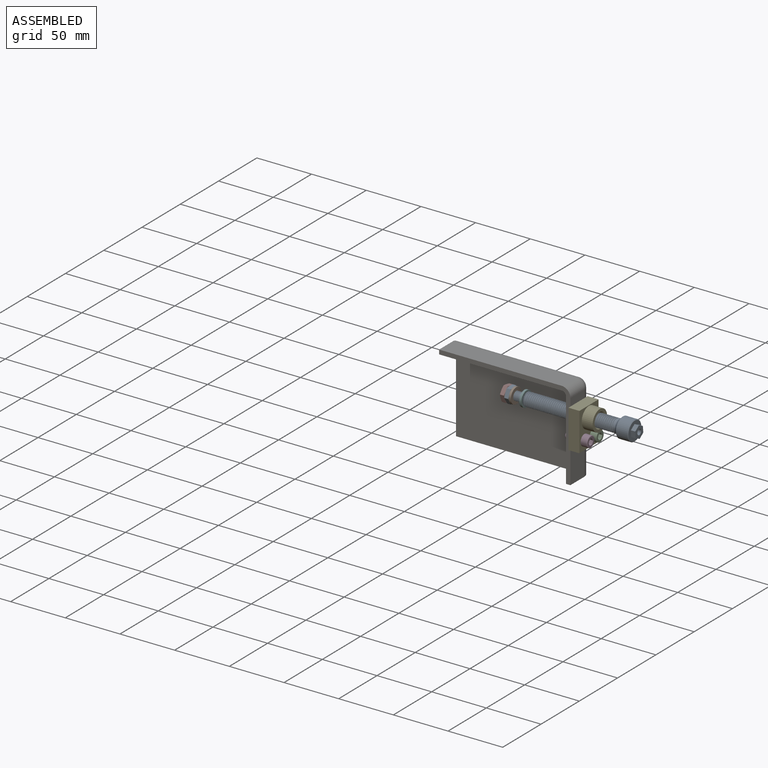
[diagram: assembled view]
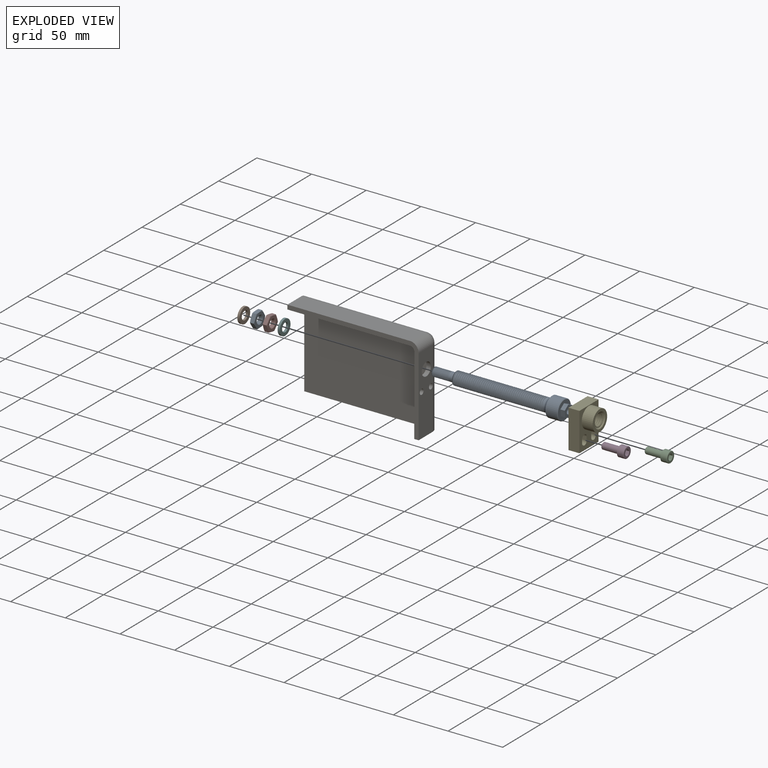
[diagram: exploded view]
GUIDED TOUR — MATED ASSEMBLY (Onshape document e716a5467d23825e18d68754, AutoMate assembly e716a5467d23825e18d68754_4b2d783e41e1b74c70136bd7_2899096c1321654fdca2aeec_default)

This assembly has 9 components, labeled P0..P8 below (a component is one placed occurrence of a part; the same part can appear more than once), held together by 10 mates. A mate is a constraint between two components; its type names the relative motion it leaves free:
  CYLINDRICAL — leaves both rotation about and translation along the listed axis free,
  PARALLEL — keeps the two listed directions parallel,
  PLANAR — leaves sliding in the plane through the listed point (normal = the listed direction) and rotation about that normal free,
  REVOLUTE — leaves rotation about the listed axis free (a hinge),
  SLIDER — leaves translation along the listed axis free.
Axis/direction vectors are unit vectors and 'through' points are millimeter coordinates, both in the assembly's world frame.

MATES
  1. SLIDER "Slider 2": P2 <-> P6, axis (-1.000, 0.000, 0.000) through (1.97, -10.00, -41.50) mm
  2. REVOLUTE "Revolute 3": P8 <-> P7, axis (-1.000, 0.000, 0.000) through (-62.51, -16.00, -25.00) mm
  3. REVOLUTE "Revolute 1": P5 <-> P0, axis (1.000, 0.000, 0.000) through (-47.01, -16.00, -25.00) mm
  4. REVOLUTE "Revolute 2": P7 <-> P0, axis (-1.000, 0.000, 0.000) through (-66.51, -16.00, -25.00) mm
  5. REVOLUTE "Revolute 4": P1 <-> P8, axis (-1.000, 0.000, 0.000) through (-58.51, -16.00, -25.00) mm
  6. PLANAR "Planar 2": P3 <-> P4, direction (-1.000, 0.000, 0.000) through (10.00, -22.00, -41.50) mm
  7. REVOLUTE "Revolute 5": P4 <-> P6, axis (-1.000, 0.000, 0.000) through (0.00, -16.00, -25.00) mm
  8. CYLINDRICAL "Cylindrical 1": P0 <-> P4, axis (-1.000, 0.000, 0.000) through (37.66, -16.00, -25.00) mm
  9. SLIDER "Slider 1": P3 <-> P6, axis (-1.000, 0.000, 0.000) through (1.97, -22.00, -41.50) mm
  10. PARALLEL "Parallel 1": P4 <-> P6, direction (0.000, -1.000, 0.000) through (5.00, -28.50, -32.50) mm

ASSEMBLY ORDER
  1. P4 — the base component [order heuristic]
  2. P0 — core [order heuristic]
  3. P6 [order verified]
  4. P5 — core [order heuristic]
  5. P1 — core [order heuristic]
  6. P8 — core [order heuristic]
  7. P7 — core [order heuristic]
  8. P2 [order verified]
  9. P3 [order verified]
Order-tag legend:
  [order verified] — this step's position reverses a verified removal order: the component was checked to insert without passing through the ones already placed.
  [order heuristic] — the first 6 components form the assembly's core: parts whose collision-free extraction could not be verified, listed in mate-graph order.

Of the 9 components, 2 carry the full construction recipe — the FeatureScript program that regenerates the part's solid from scratch; the rest are supplied as boundary geometry only.
Each toured component is shown spotlighted twice — in the assembled view, then in the exploded view, where a leader line traces a displaced component back to its assembled socket (saturated green if recipe-attached, orange if geometry-only; every other component desaturated gray) — followed by its recipe or geometry summary and the mates that hold it.
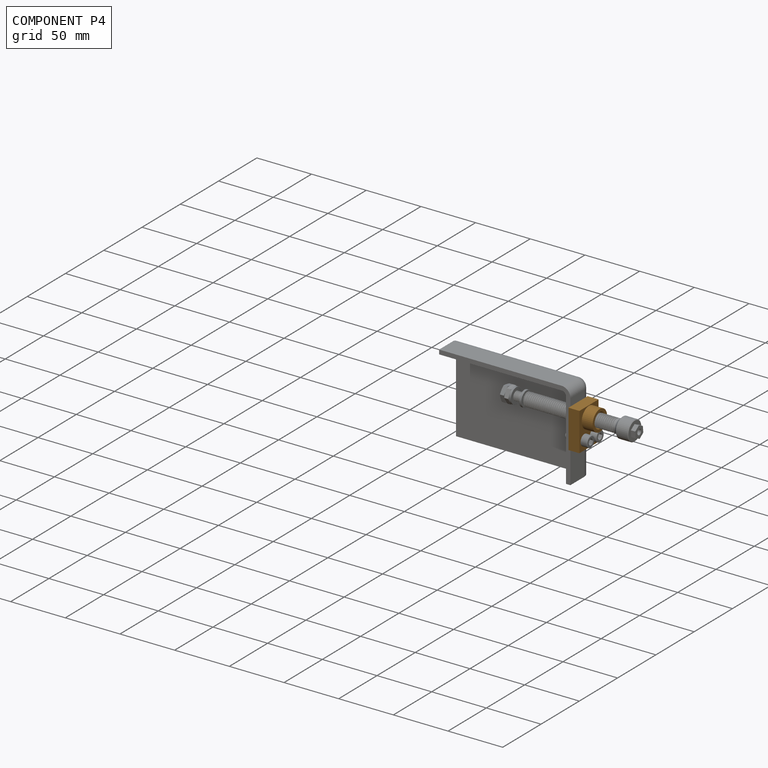
[diagram: component P4 — assembled]
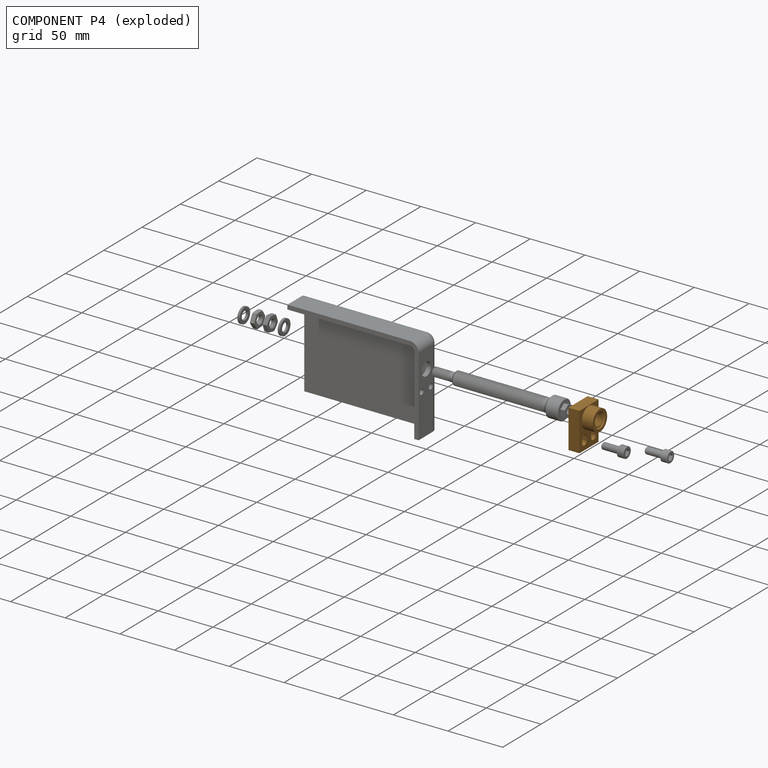
[diagram: component P4 — exploded]
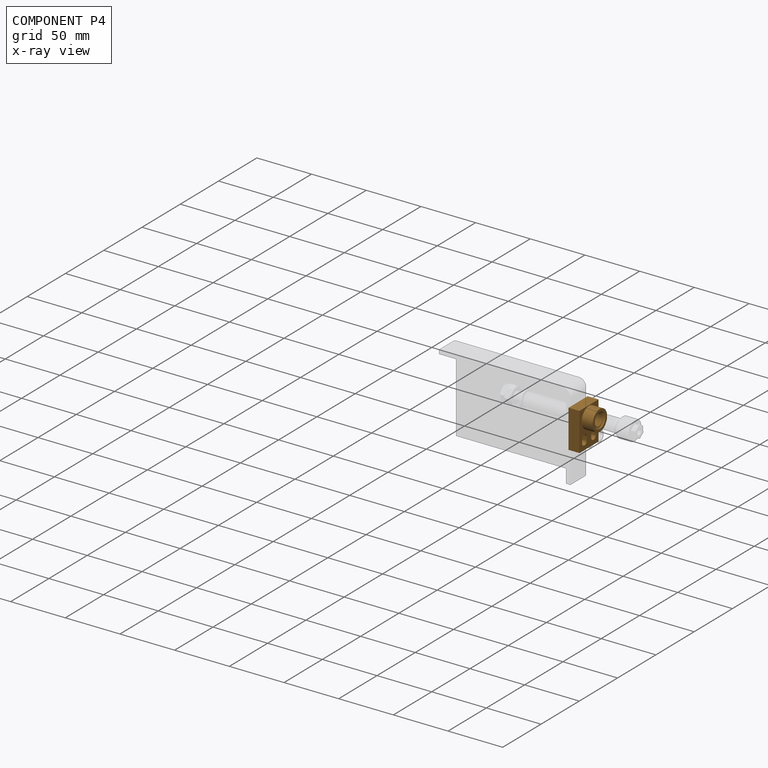
[diagram: component P4 — x-ray view]
COMPONENT P4 — geometry summary (no construction recipe available for this part):
  bounding box: 35.4 x 25.4 x 20.4 mm
  B-rep topology: 1 solid, 26 faces, 130 edges
  volume: 8680 mm^3 (47% of its bounding box)
Held by: PLANAR mate "Planar 2" to P3; REVOLUTE mate "Revolute 5" to P6; CYLINDRICAL mate "Cylindrical 1" to P0; PARALLEL mate "Parallel 1" to P6.
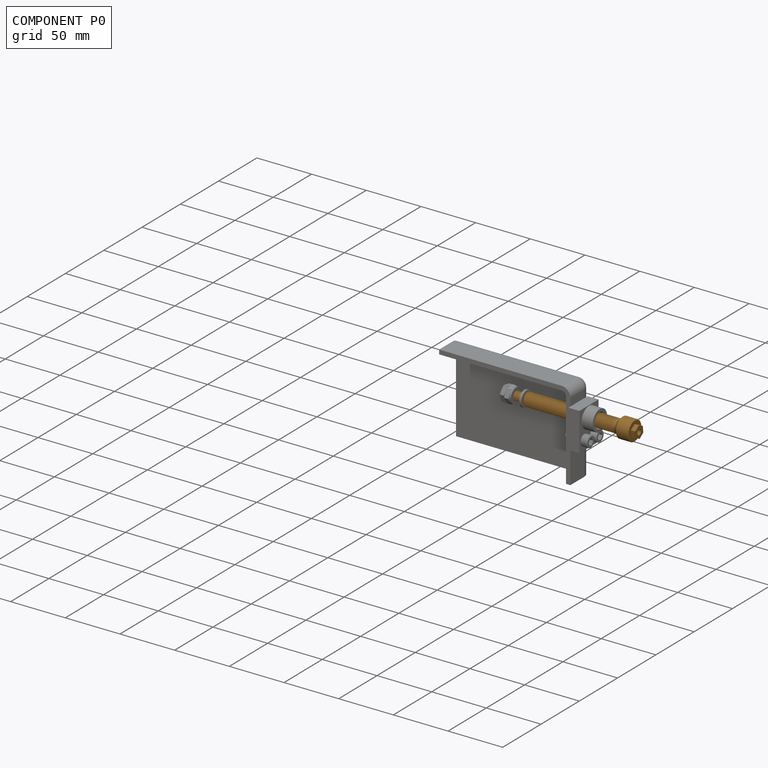
[diagram: component P0 — assembled]
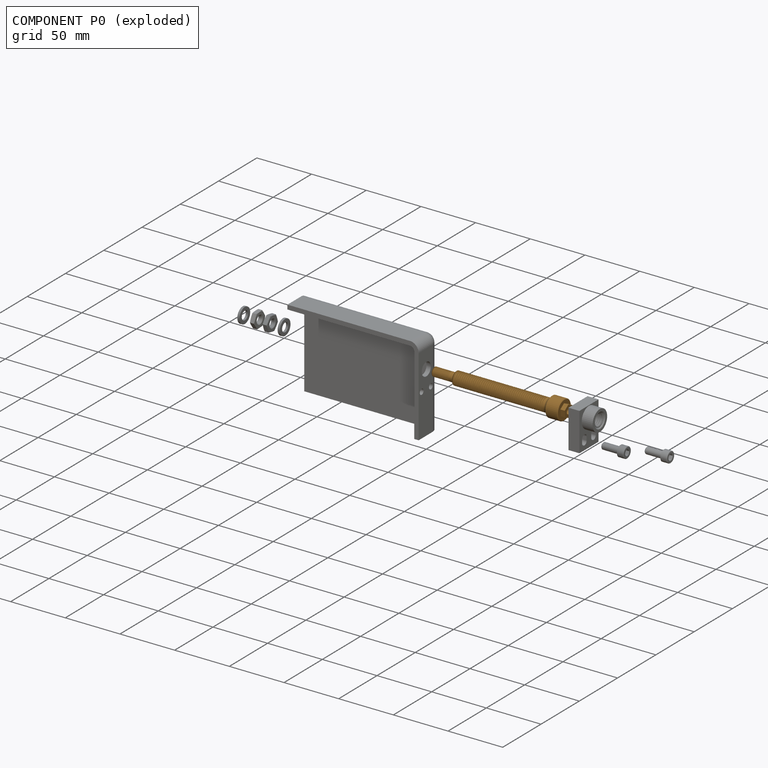
[diagram: component P0 — exploded]
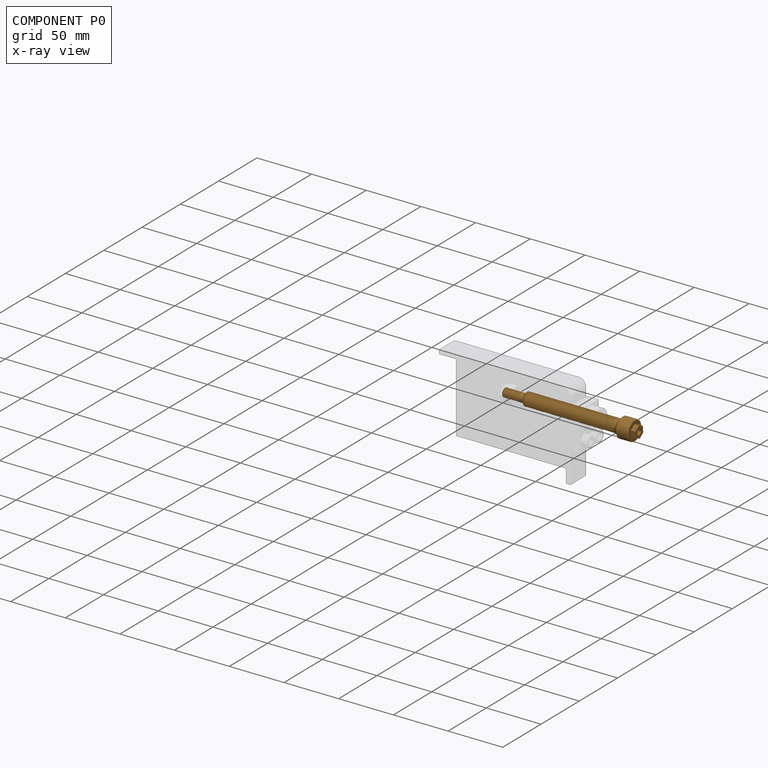
[diagram: component P0 — x-ray view]
COMPONENT P0 — geometry summary (no construction recipe available for this part):
  bounding box: 123.5 x 18.5 x 18.5 mm
  B-rep topology: 1 solid, 98 faces, 529 edges
  volume: 12244 mm^3 (29% of its bounding box)
  symmetry: revolution-symmetric about the x axis through its bounding-box center
Held by: REVOLUTE mate "Revolute 1" to P5; REVOLUTE mate "Revolute 2" to P7; CYLINDRICAL mate "Cylindrical 1" to P4.
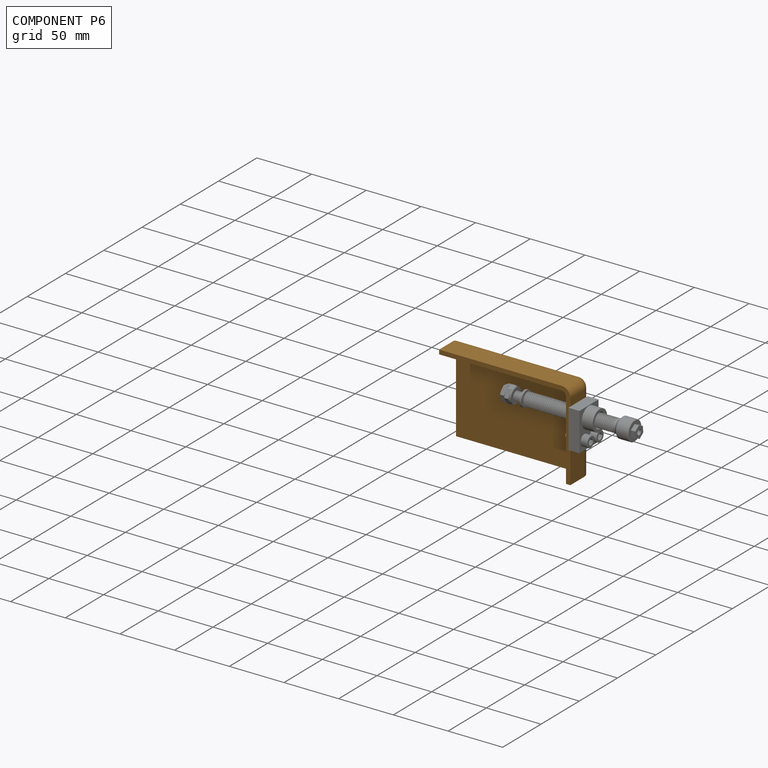
[diagram: component P6 — assembled]
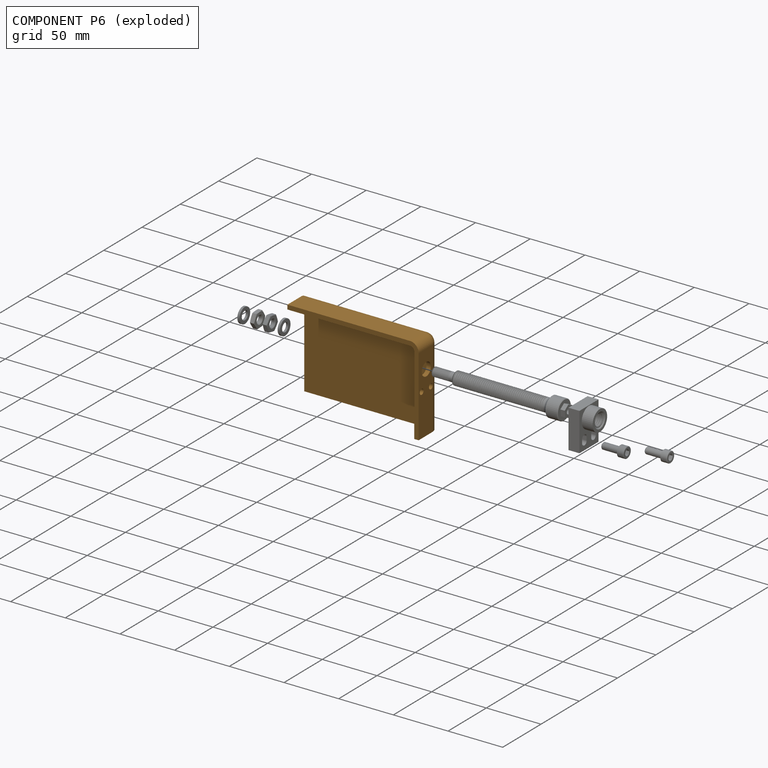
[diagram: component P6 — exploded]
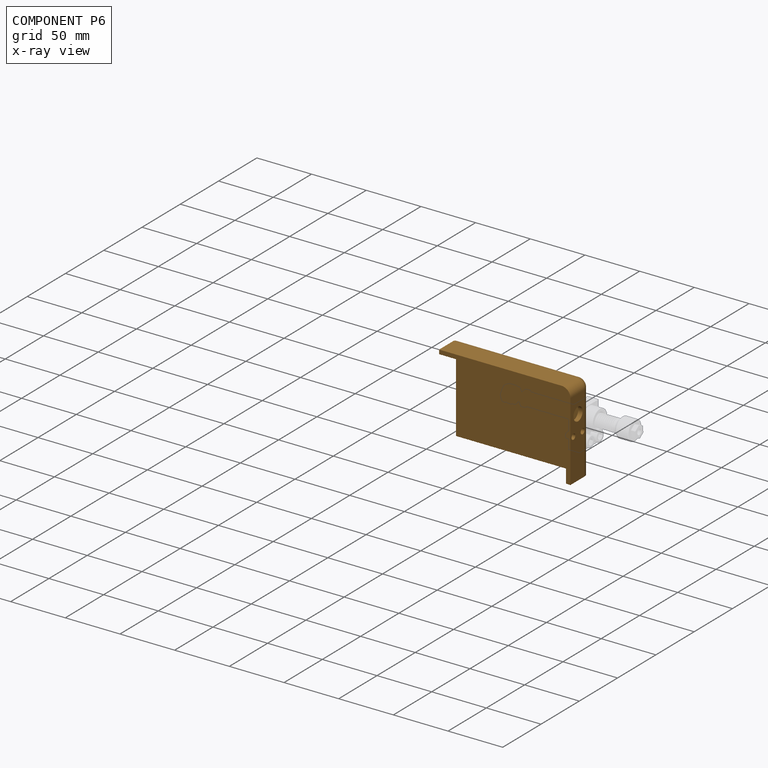
[diagram: component P6 — x-ray view]
COMPONENT P6 — geometry summary (no construction recipe available for this part):
  bounding box: 120.0 x 80.0 x 26.0 mm
  B-rep topology: 1 solid, 20 faces, 106 edges
  volume: 52744 mm^3 (21% of its bounding box)
Held by: SLIDER mate "Slider 2" to P2; REVOLUTE mate "Revolute 5" to P4; SLIDER mate "Slider 1" to P3; PARALLEL mate "Parallel 1" to P4.
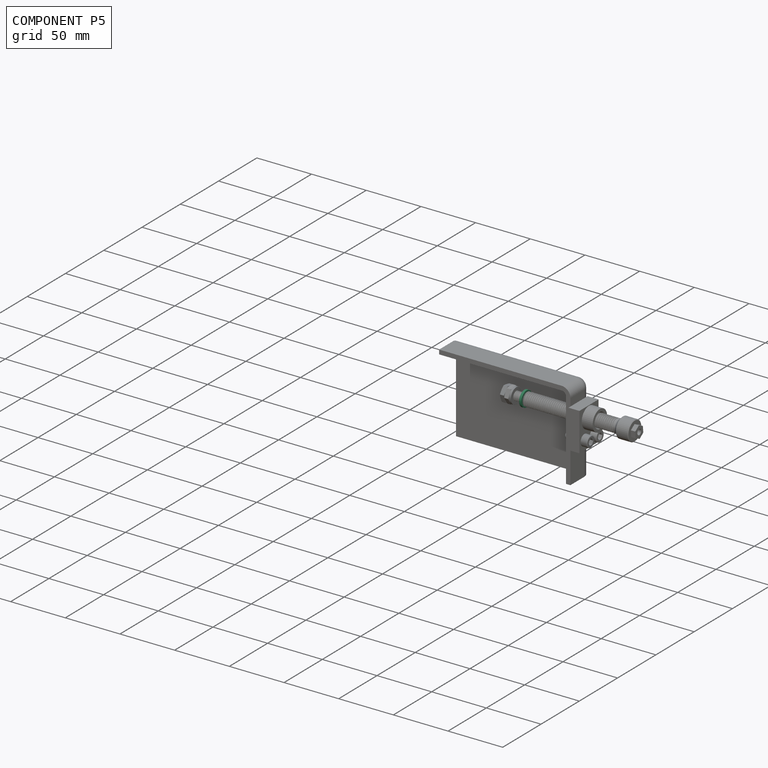
[diagram: component P5 — assembled]
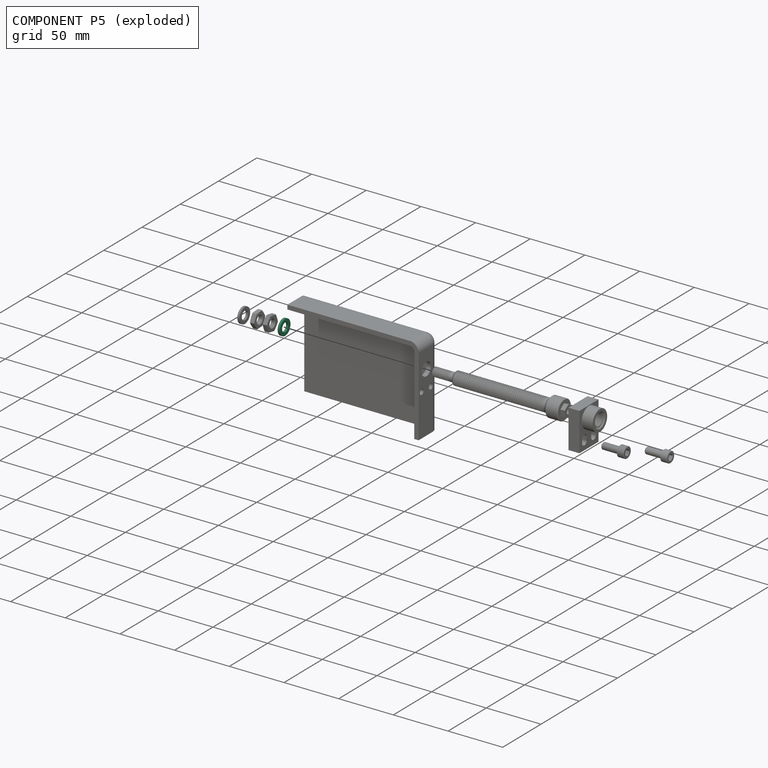
[diagram: component P5 — exploded]
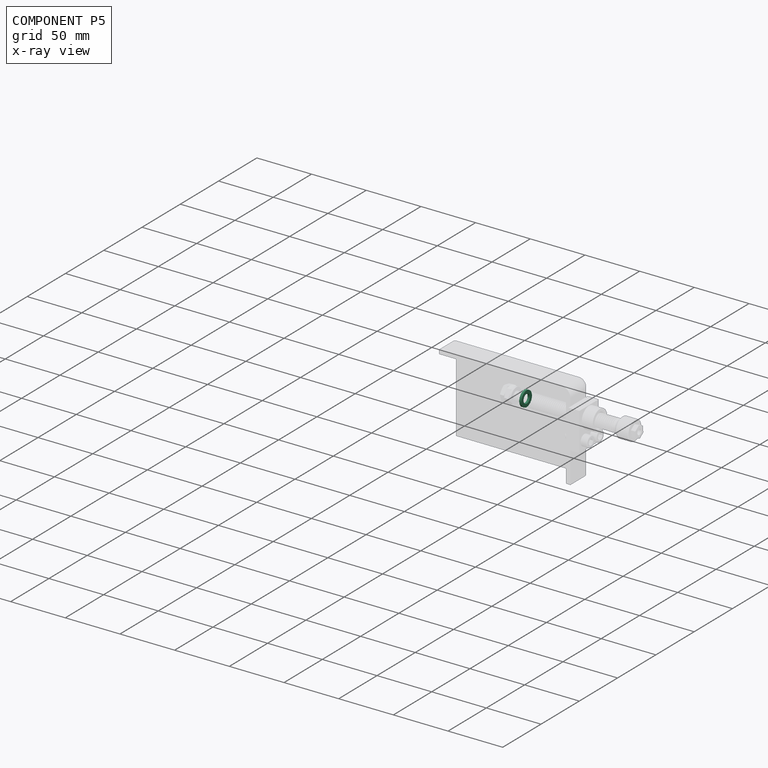
[diagram: component P5 — x-ray view]
COMPONENT P5 — same part as P1 (CADFS 00840719); its construction recipe is shown at P1.
Held by: REVOLUTE mate "Revolute 1" to P0.
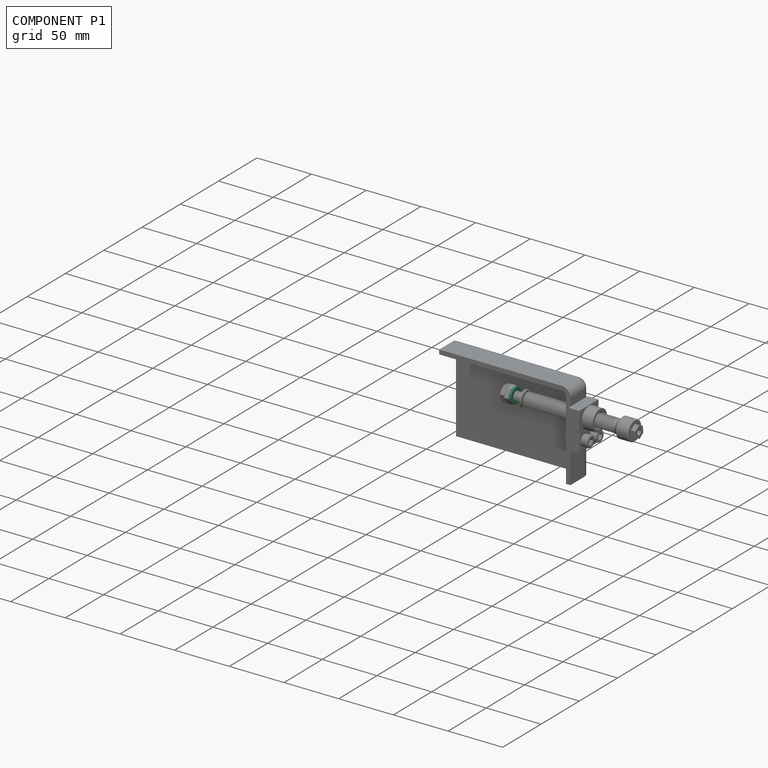
[diagram: component P1 — assembled]
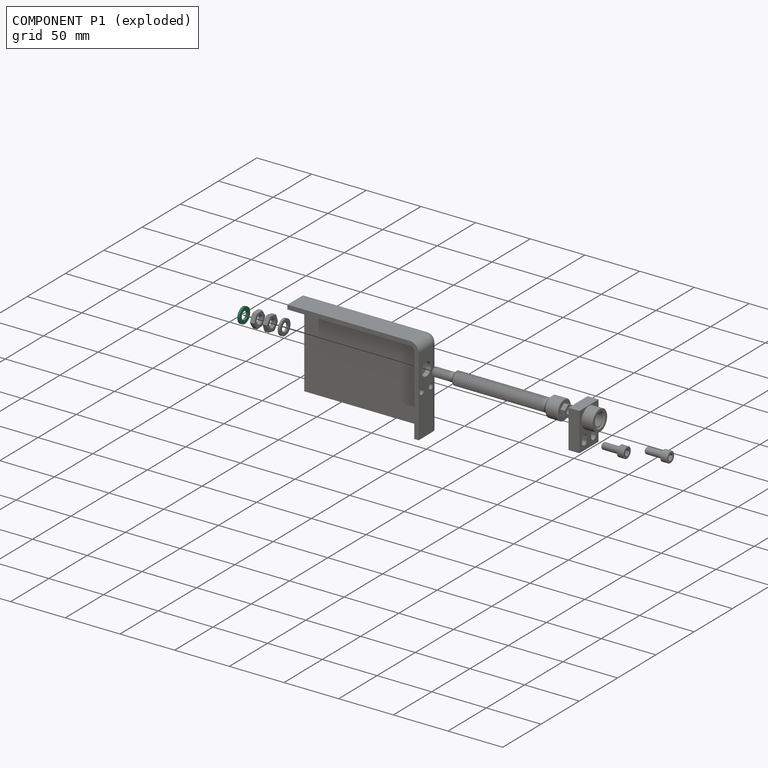
[diagram: component P1 — exploded]
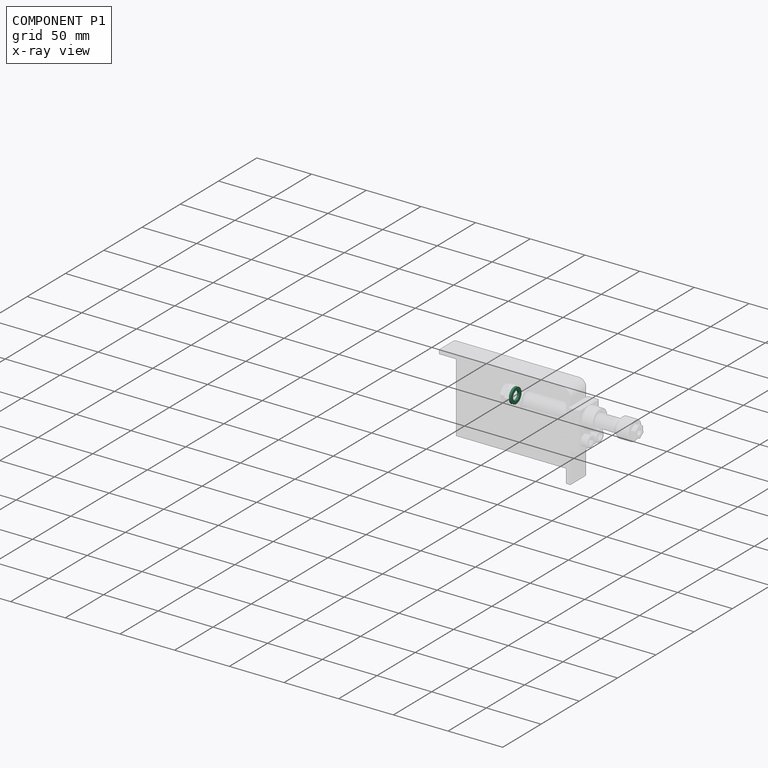
[diagram: component P1 — x-ray view]
COMPONENT P1 — recipe-attached (CADFS 00840719, mesh-verified: the recipe's output STEP matches this component's geometry to below the mesh-comparison resolution (tessellation chordal tolerance ~0.0298 mm)).
Held by: REVOLUTE mate "Revolute 4" to P8.
Construction recipe (FeatureScript — the CAD program that rebuilds this solid; sketch coordinates are in the units given by the * unit suffixes, e.g. mm):

FeatureScript 1540;
import(path : "onshape/std/geometry.fs", version : "1540.0");
import(path : "onshape/std/common.fs", version : "1540.0");
const mm = millimeter;
const VERTEX = EntityType.VERTEX;
const EDGE = EntityType.EDGE;
const FACE = EntityType.FACE;
const BODY = EntityType.BODY;
function v(x, y){return vector(x, y);}
function OD(order){return orderDisambiguation(order);}
function OSD(set){return originalSetDisambiguation(set);}
function TD(topology){return topologyDisambiguation(topology);}
function TDD(query){return trueDependencyDisambiguation(query);}
function sQuery(a, b, c) {return sketchEntityQuery(a, b, c);}

annotation { "Feature Type Name" : "Feature", "Feature Type Description" : "" }
export const myFeature = defineFeature(function(context is Context, id is Id, definition is map)
    precondition{}
    {
        {
            var Q0;
            Q0=qCreatedBy(makeId("Front.planeOp"),FACE);
            var sketch = newSketch(context, id + "F0", { "sketchPlane" : qUnion([Q0])});
            skCircle(sketch, "E0", {"center": v(0, 0) * mm, "radius": 7 * mm});
            skCircle(sketch, "E1", {"center": v(0, 0) * mm, "radius": 4 * mm});
            skSolve(sketch);
        }
        {
            var Q0;
            Q0 = qSketchRegion(id + "F0", true);
            extrude(context, id + "F1", {"entities" : qUnion([Q0]), "depth" : 2 * mm, "offsetDistance" : 25 * mm});
        }
    });
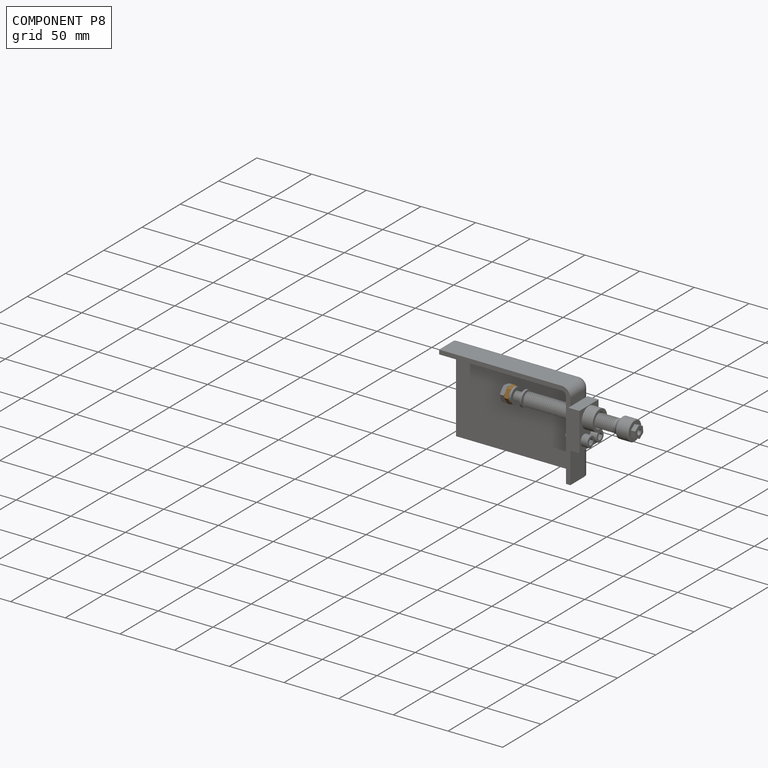
[diagram: component P8 — assembled]
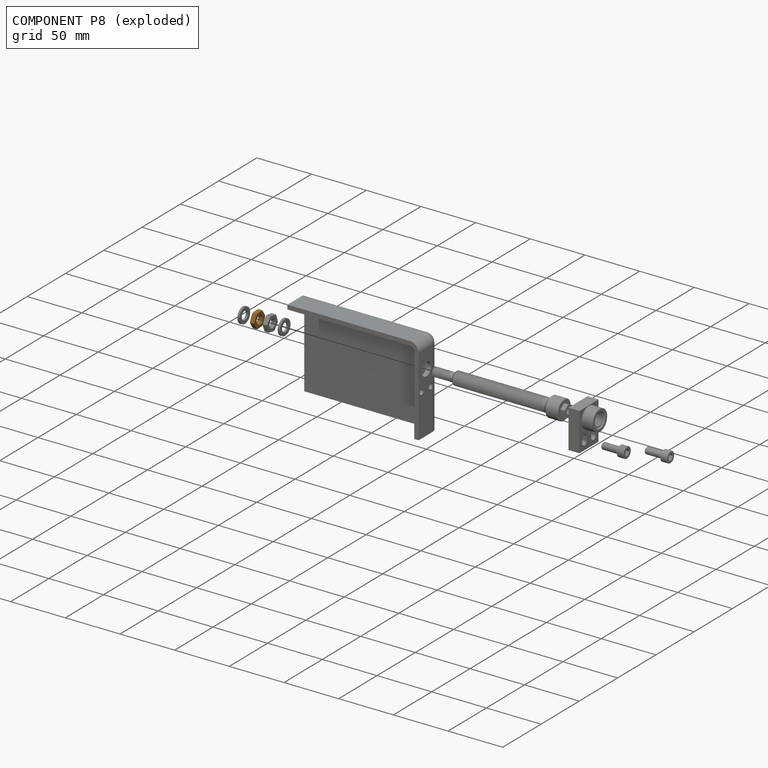
[diagram: component P8 — exploded]
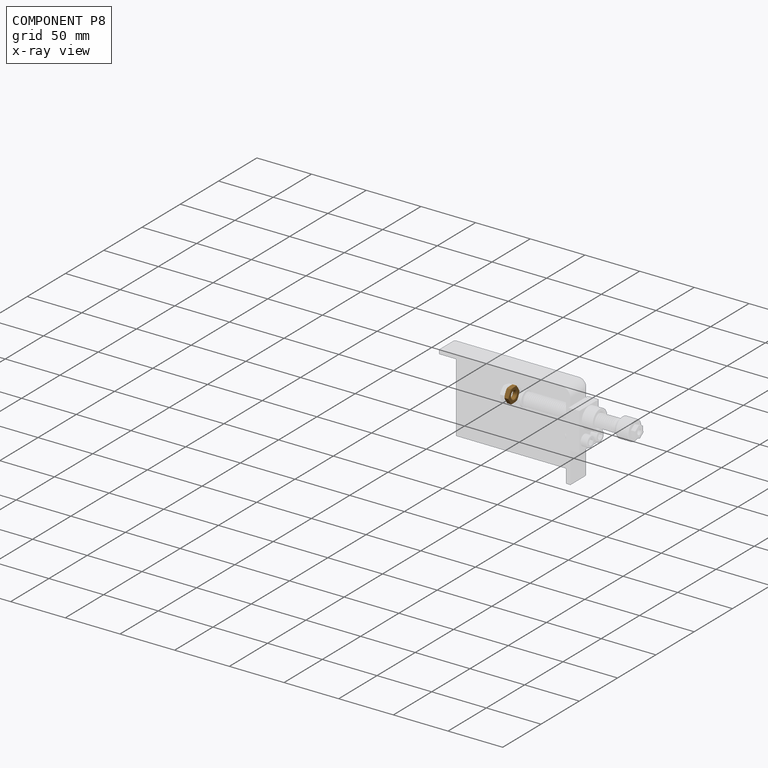
[diagram: component P8 — x-ray view]
COMPONENT P8 — geometry summary (no construction recipe available for this part):
  bounding box: 15.6 x 15.6 x 4.6 mm
  B-rep topology: 1 solid, 23 faces, 98 edges
  volume: 454 mm^3 (41% of its bounding box)
  symmetry: 6-fold rotationally symmetric about the x axis; 2-fold rotationally symmetric about the y axis; 2-fold rotationally symmetric about the z axis; mirror-symmetric across its x mid-plane, y mid-plane, z mid-plane
Held by: REVOLUTE mate "Revolute 3" to P7; REVOLUTE mate "Revolute 4" to P1.
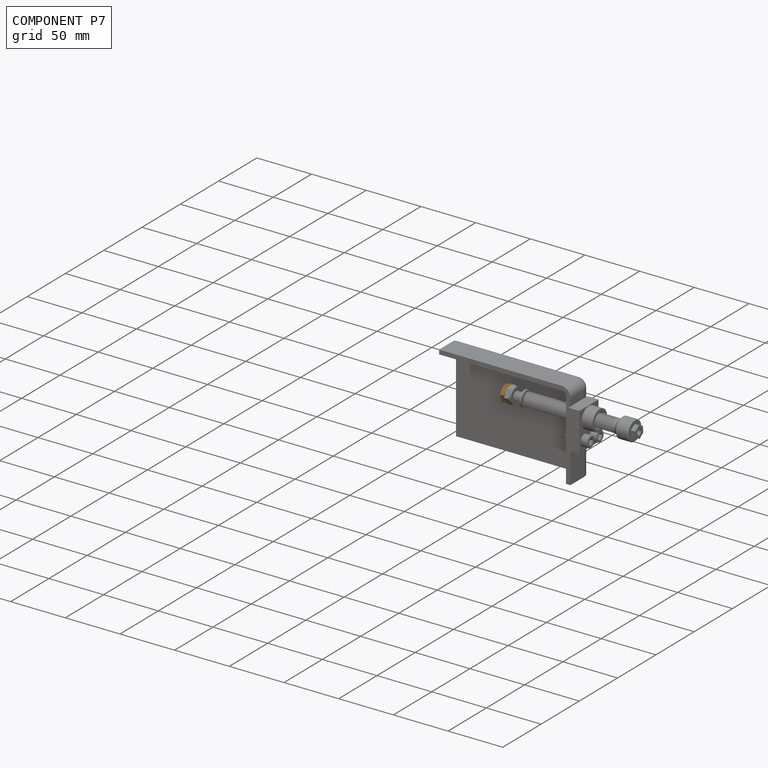
[diagram: component P7 — assembled]
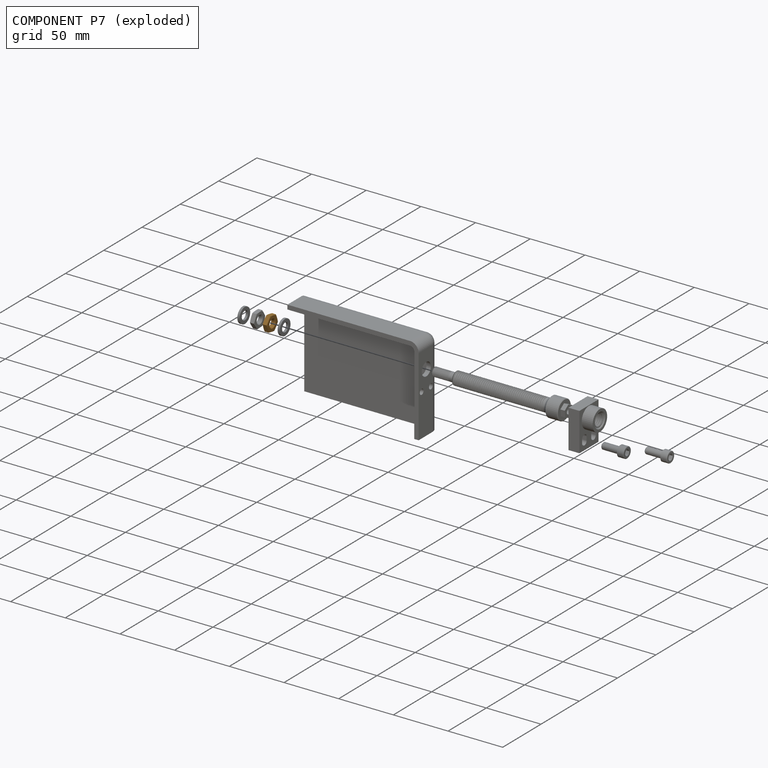
[diagram: component P7 — exploded]
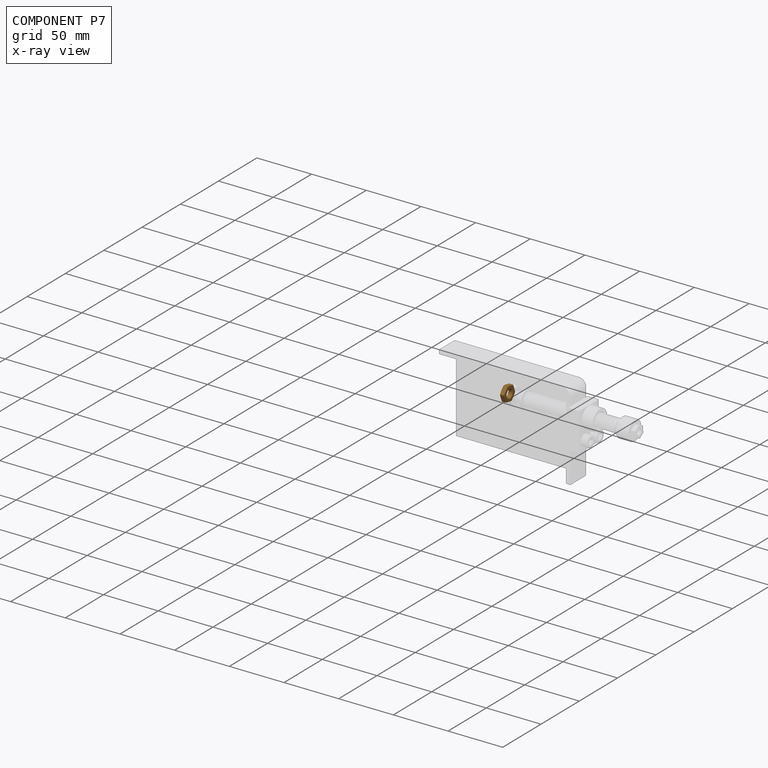
[diagram: component P7 — x-ray view]
COMPONENT P7 — geometry summary (no construction recipe available for this part):
  bounding box: 15.6 x 15.6 x 4.6 mm
  B-rep topology: 1 solid, 23 faces, 98 edges
  volume: 454 mm^3 (41% of its bounding box)
  symmetry: 6-fold rotationally symmetric about the x axis; 2-fold rotationally symmetric about the y axis; 2-fold rotationally symmetric about the z axis; mirror-symmetric across its x mid-plane, y mid-plane, z mid-plane
Held by: REVOLUTE mate "Revolute 3" to P8; REVOLUTE mate "Revolute 2" to P0.
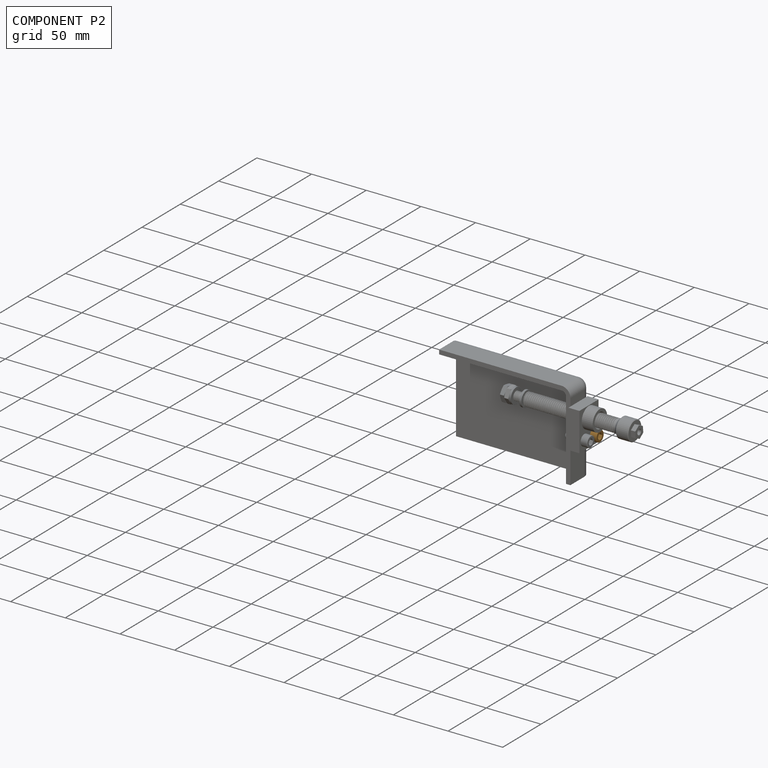
[diagram: component P2 — assembled]
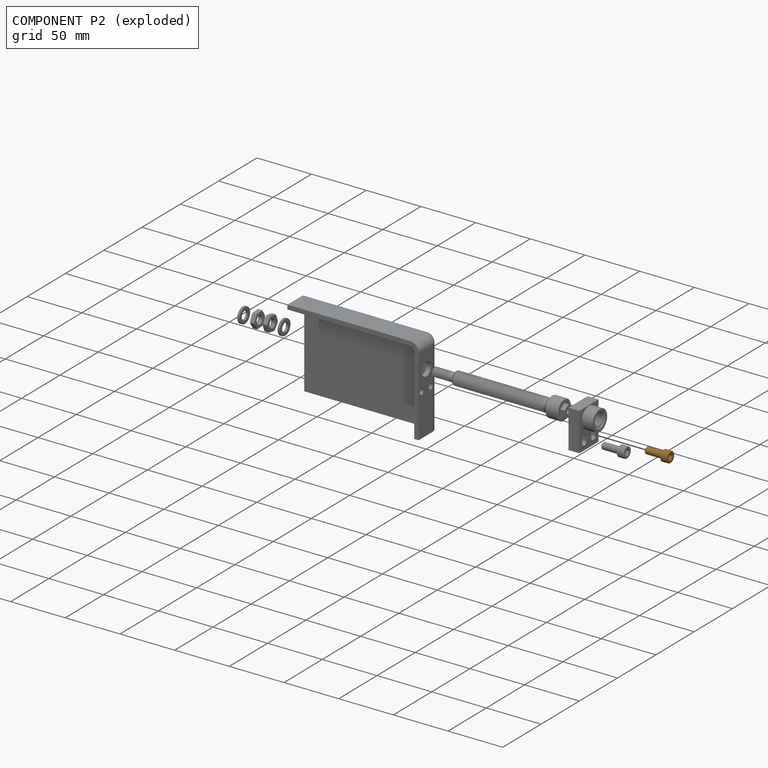
[diagram: component P2 — exploded]
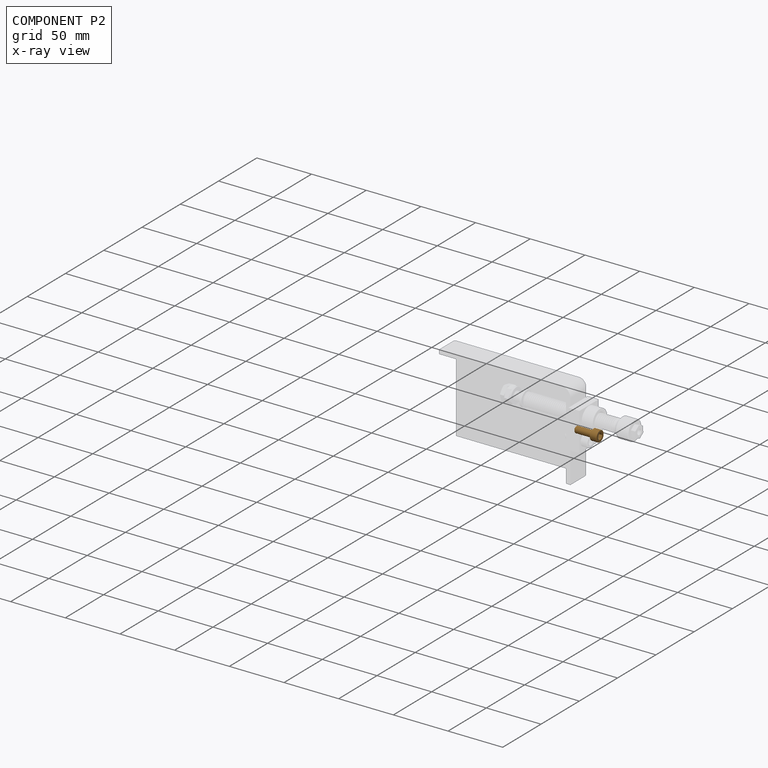
[diagram: component P2 — x-ray view]
COMPONENT P2 — geometry summary (no construction recipe available for this part):
  bounding box: 22.0 x 10.8 x 10.8 mm
  B-rep topology: 1 solid, 29 faces, 131 edges
  volume: 845 mm^3 (33% of its bounding box)
  symmetry: 6-fold rotationally symmetric about the x axis; mirror-symmetric across its y mid-plane, z mid-plane
Held by: SLIDER mate "Slider 2" to P6.
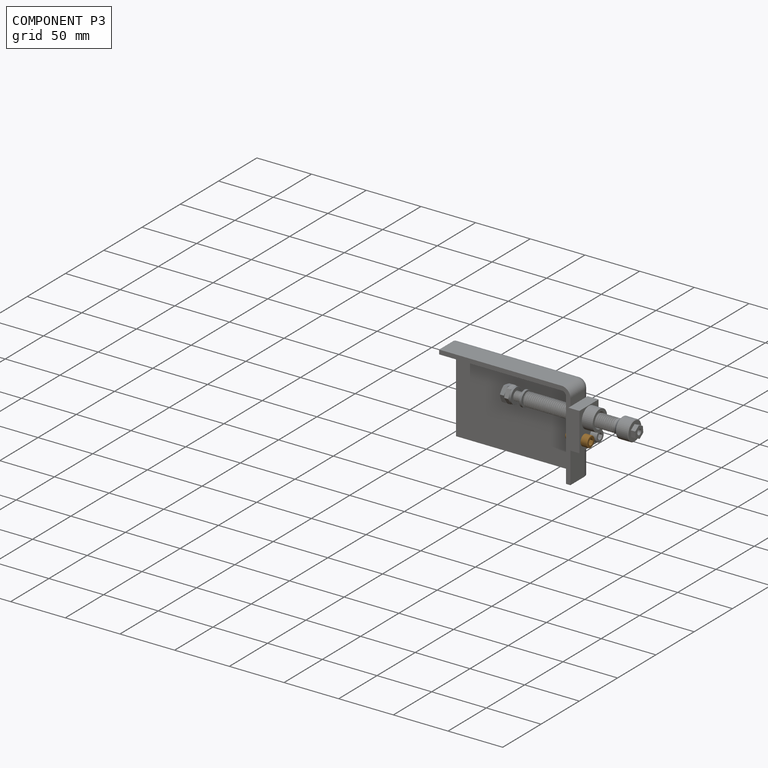
[diagram: component P3 — assembled]
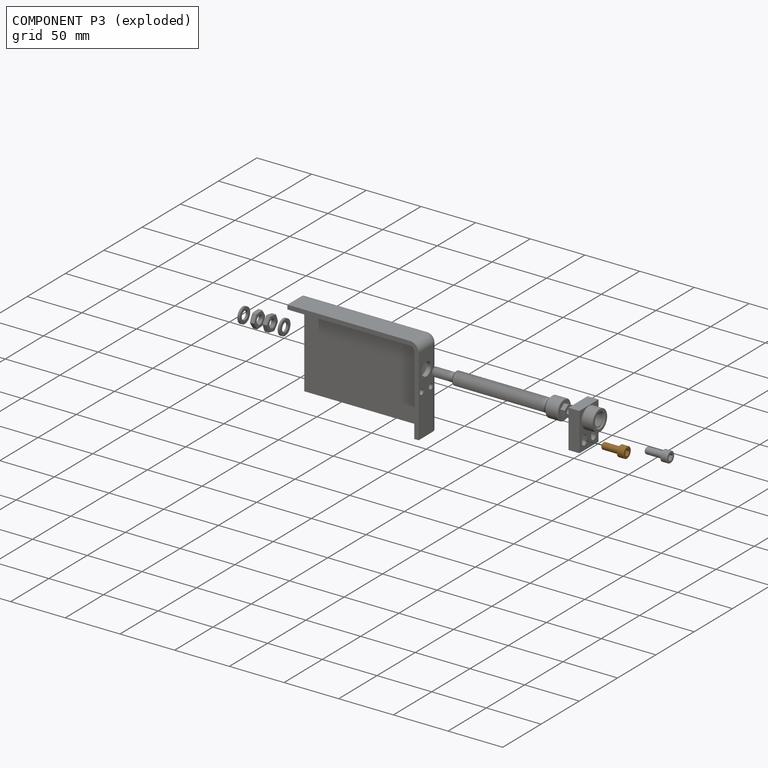
[diagram: component P3 — exploded]
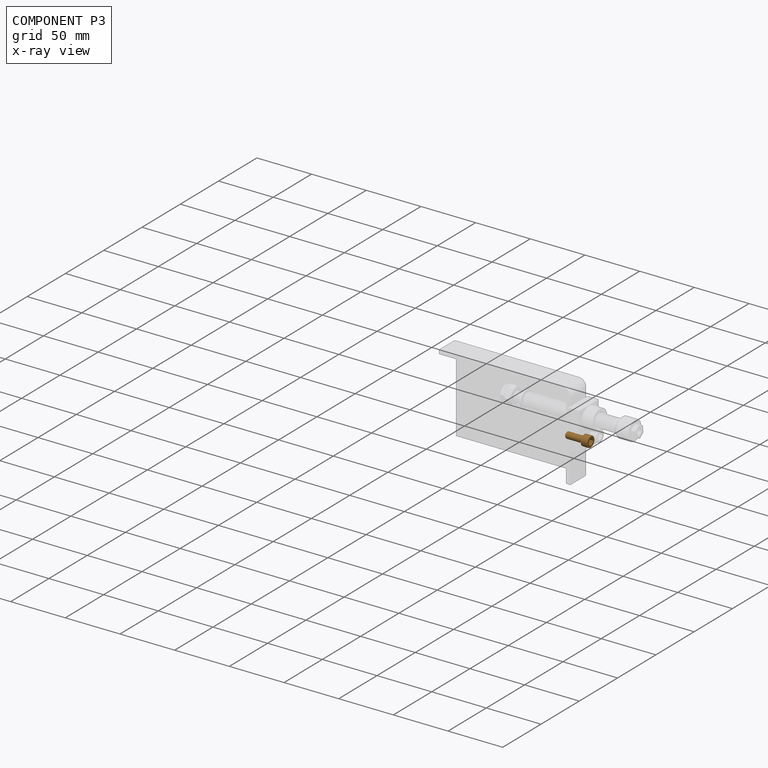
[diagram: component P3 — x-ray view]
COMPONENT P3 — geometry summary (no construction recipe available for this part):
  bounding box: 22.0 x 10.8 x 10.8 mm
  B-rep topology: 1 solid, 29 faces, 131 edges
  volume: 845 mm^3 (33% of its bounding box)
  symmetry: 6-fold rotationally symmetric about the x axis; mirror-symmetric across its y mid-plane, z mid-plane
Held by: PLANAR mate "Planar 2" to P4; SLIDER mate "Slider 1" to P6.
PROVENANCE & LICENSES
Assembly (occurrences, transforms, mates, per-part STEP geometry): AutoMate dataset, Zenodo record 7776208, CC0.
Construction recipes: CADFS (HuggingFace VladPyatov/CADFS, CC-BY-4.0, layered over the ABC dataset), FeatureScript reconstruction programs keyed by ABC model id.
Join: ABC meta listings map ABC model id -> Onshape documentId; within a shared document, parts are matched by geometric signature (bounding-box dims + volume at 0.1% relative tolerance, exact B-rep face/solid counts).
Verification: 2 of this assembly's 9 components carry a recipe attachment, and every attachment is mesh-verified: the CADFS STEP and the AutoMate member STEP were compared as meshes in their shared local frame (symmetric sampled-point-to-mesh distance); worst across the 2 attachments: below the mesh-comparison resolution (tessellation chordal tolerance ~0.0298 mm) on a 20 mm part.
Renders: orthographic iso camera (az 35 / el 25); the floor grid conveys scale (grid pitch printed in each image; no ruler). In the exploded view each component is displaced by its stored offset vector: the offsets alone carry the explosion direction (mate normal/axis signs are not orientation cues and do not encode it), and separation distances are assigned per mate-chain, not proportionally to assembly-order depth.
